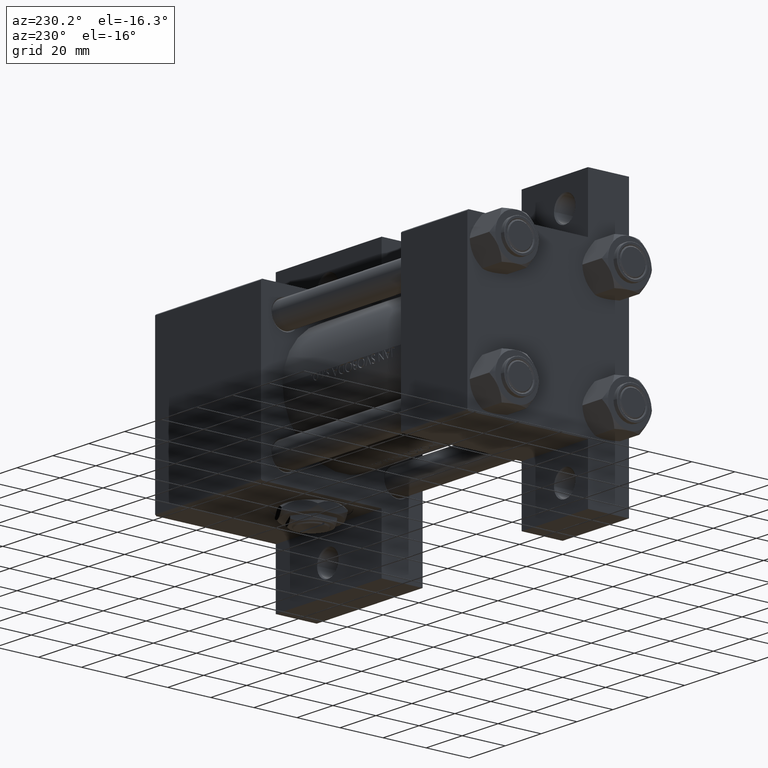
[diagram: clean part render]
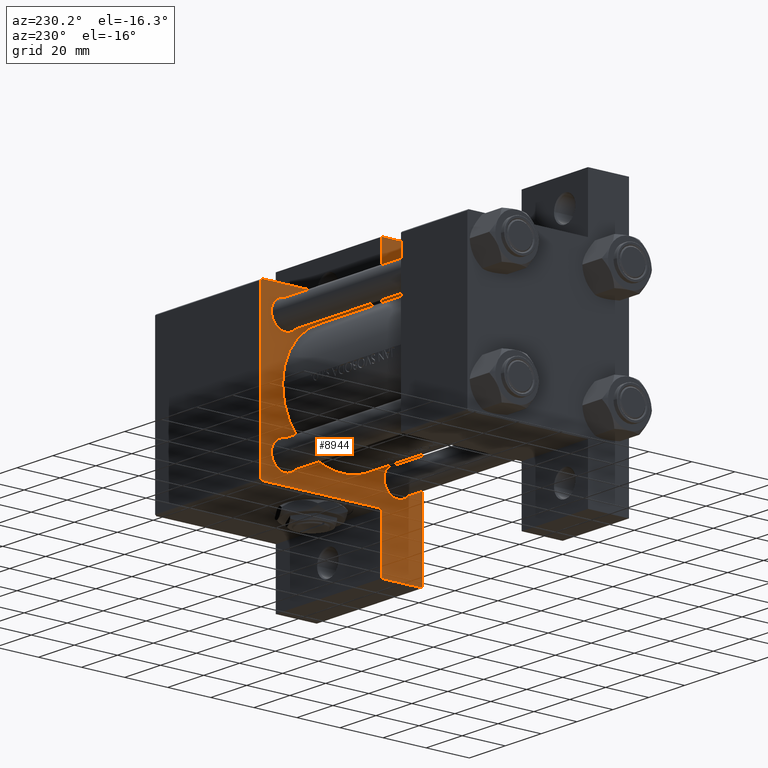
[diagram: same view with one face highlighted and labeled with its STEP entity id]
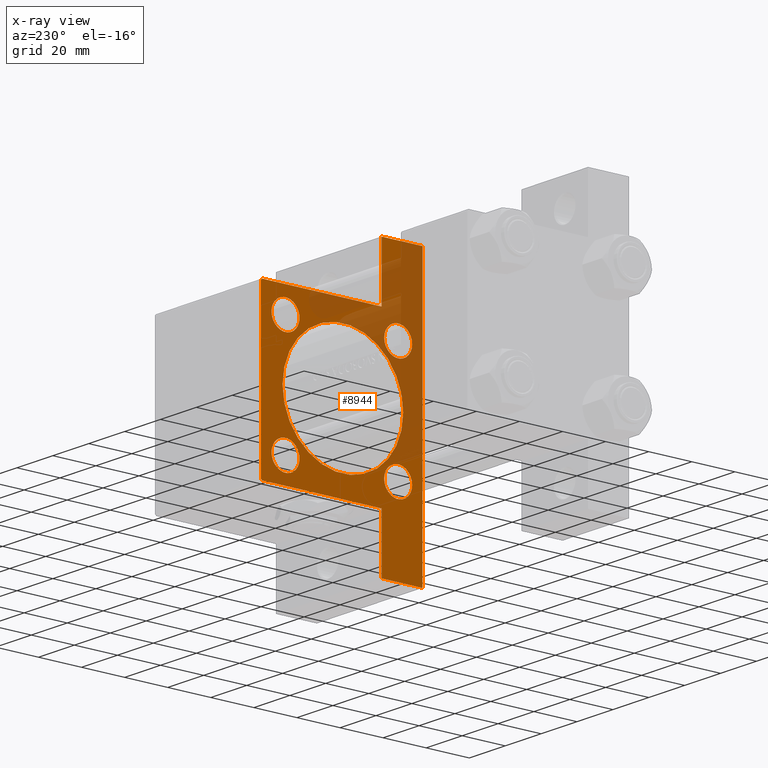
[diagram: x-ray of the same camera — body ghosted, the highlighted face saturated]
A machine part, auxiliary view. The second image highlights one B-rep face of the part: STEP entity #8944.
The next image is the same camera in x-ray: the body ghosted, the highlighted face saturated — about 37% of this face is hidden behind the body in this view.
In plain terms, the highlighted planar face has unit normal (-1, 0, 0).
Its self-contained STEP definition (entity closure, byte-faithful):
#45 = DIRECTION ( 'NONE',  ( -1.000000000000000000, -0.000000000000000000, 0.000000000000000000 ) ) ;
#174 = AXIS2_PLACEMENT_3D ( 'NONE', #28386, #29371, #6247 ) ;
#360 = LINE ( 'NONE', #41952, #45860 ) ;
#390 = DIRECTION ( 'NONE',  ( 0.000000000000000000, 0.000000000000000000, -1.000000000000000000 ) ) ;
#554 = CARTESIAN_POINT ( 'NONE',  ( 114.9999999999999858, -37.50000000000000000, 36.99999999999997868 ) ) ;
#589 = VERTEX_POINT ( 'NONE', #29819 ) ;
#794 = DIRECTION ( 'NONE',  ( 1.000000000000000000, 0.000000000000000000, 0.000000000000000000 ) ) ;
#1158 = EDGE_CURVE ( 'NONE', #44466, #37539, #19036, .T. ) ;
#1412 = VECTOR ( 'NONE', #8575, 1000.000000000000000 ) ;
#1504 = VERTEX_POINT ( 'NONE', #41440 ) ;
#1781 = VERTEX_POINT ( 'NONE', #27314 ) ;
#2285 = VERTEX_POINT ( 'NONE', #6824 ) ;
#2868 = EDGE_CURVE ( 'NONE', #21230, #24046, #42062, .T. ) ;
#2968 = EDGE_CURVE ( 'NONE', #28850, #26905, #27327, .T. ) ;
#3091 = ORIENTED_EDGE ( 'NONE', *, *, #1158, .T. ) ;
#3147 = DIRECTION ( 'NONE',  ( 1.000000000000000000, 0.000000000000000000, -0.000000000000000000 ) ) ;
#3533 = CARTESIAN_POINT ( 'NONE',  ( 114.9999999999999858, 26.14999999999999858, -19.64999999999999503 ) ) ;
#3559 = VECTOR ( 'NONE', #10689, 1000.000000000000000 ) ;
#4028 = VERTEX_POINT ( 'NONE', #45870 ) ;
#4963 = CIRCLE ( 'NONE', #32768, 28.00000000000000000 ) ;
#5330 = AXIS2_PLACEMENT_3D ( 'NONE', #34633, #45, #15193 ) ;
#5779 = ORIENTED_EDGE ( 'NONE', *, *, #7418, .F. ) ;
#5871 = CARTESIAN_POINT ( 'NONE',  ( 114.9999999999999858, 63.50000000000000000, -18.50000000000000000 ) ) ;
#6247 = DIRECTION ( 'NONE',  ( 0.000000000000000000, 0.000000000000000000, 1.000000000000000000 ) ) ;
#6709 = CARTESIAN_POINT ( 'NONE',  ( 114.9999999999999858, 37.00000000000000000, 37.49999999999999289 ) ) ;
#6824 = CARTESIAN_POINT ( 'NONE',  ( 114.9999999999999858, -26.14999999999999147, -19.65000000000000213 ) ) ;
#7352 = VERTEX_POINT ( 'NONE', #34209 ) ;
#7418 = EDGE_CURVE ( 'NONE', #44466, #37284, #360, .T. ) ;
#7743 = ORIENTED_EDGE ( 'NONE', *, *, #44661, .T. ) ;
#7926 = DIRECTION ( 'NONE',  ( 0.000000000000000000, 0.000000000000000000, -1.000000000000000000 ) ) ;
#8121 = DIRECTION ( 'NONE',  ( 0.000000000000000000, 0.000000000000000000, 1.000000000000000000 ) ) ;
#8210 = LINE ( 'NONE', #42087, #40367 ) ;
#8267 = ORIENTED_EDGE ( 'NONE', *, *, #23624, .T. ) ;
#8343 = LINE ( 'NONE', #19029, #15817 ) ;
#8575 = DIRECTION ( 'NONE',  ( 5.337610695313252371E-16, 1.000000000000000000, 0.000000000000000000 ) ) ;
#8944 = ADVANCED_FACE ( 'NONE', ( #31347, #16386, #12416, #23849, #20123, #27841 ), #26651, .T. ) ;
#9172 = ORIENTED_EDGE ( 'NONE', *, *, #13933, .T. ) ;
#9592 = EDGE_CURVE ( 'NONE', #23149, #28850, #23723, .T. ) ;
#10113 = CARTESIAN_POINT ( 'NONE',  ( 114.9999999999999858, 26.14999999999999858, -26.15000000000000213 ) ) ;
#10689 = DIRECTION ( 'NONE',  ( 0.000000000000000000, 0.000000000000000000, -1.000000000000000000 ) ) ;
#11335 = AXIS2_PLACEMENT_3D ( 'NONE', #10113, #3147, #25524 ) ;
#11565 = CARTESIAN_POINT ( 'NONE',  ( 114.9999999999999858, 26.14999999999999858, 26.15000000000000213 ) ) ;
#11609 = ORIENTED_EDGE ( 'NONE', *, *, #26212, .T. ) ;
#11927 = CARTESIAN_POINT ( 'NONE',  ( 114.9999999999999858, -26.14999999999999147, 19.65000000000000213 ) ) ;
#11980 = CARTESIAN_POINT ( 'NONE',  ( 114.9999999999999858, 0.000000000000000000, -0.5000000000000004441 ) ) ;
#12055 = CARTESIAN_POINT ( 'NONE',  ( 114.9999999999999716, -63.50000000000000000, -18.50000000000000000 ) ) ;
#12076 = CARTESIAN_POINT ( 'NONE',  ( 114.9999999999999858, -37.24999999999999289, 37.24999999999999289 ) ) ;
#12416 = FACE_BOUND ( 'NONE', #17080, .T. ) ;
#12801 = CARTESIAN_POINT ( 'NONE',  ( 114.9999999999999858, -26.14999999999999147, -26.15000000000000924 ) ) ;
#13797 = EDGE_CURVE ( 'NONE', #24046, #589, #40055, .T. ) ;
#13933 = EDGE_CURVE ( 'NONE', #1504, #37284, #46194, .T. ) ;
#14220 = CIRCLE ( 'NONE', #48456, 6.500000000000008882 ) ;
#14539 = EDGE_CURVE ( 'NONE', #23149, #37539, #8210, .T. ) ;
#15193 = DIRECTION ( 'NONE',  ( 0.000000000000000000, 0.000000000000000000, 1.000000000000000000 ) ) ;
#15518 = EDGE_LOOP ( 'NONE', ( #19790, #33145 ) ) ;
#15817 = VECTOR ( 'NONE', #390, 1000.000000000000000 ) ;
#16381 = CARTESIAN_POINT ( 'NONE',  ( 114.9999999999999858, 37.50000000000000000, -37.50000000000000000 ) ) ;
#16386 = FACE_BOUND ( 'NONE', #34801, .T. ) ;
#16490 = VECTOR ( 'NONE', #43799, 1000.000000000000000 ) ;
#16660 = DIRECTION ( 'NONE',  ( 0.000000000000000000, 0.000000000000000000, 1.000000000000000000 ) ) ;
#16662 = CARTESIAN_POINT ( 'NONE',  ( 114.9999999999999858, -26.14999999999999147, 26.15000000000000924 ) ) ;
#16666 = VERTEX_POINT ( 'NONE', #26988 ) ;
#16783 = CIRCLE ( 'NONE', #39882, 28.00000000000000000 ) ;
#17080 = EDGE_LOOP ( 'NONE', ( #8267, #35178 ) ) ;
#18230 = CARTESIAN_POINT ( 'NONE',  ( 114.9999999999999858, 37.50000000000000000, 36.99999999999999289 ) ) ;
#18452 = ORIENTED_EDGE ( 'NONE', *, *, #13797, .T. ) ;
#18790 = VECTOR ( 'NONE', #38939, 1000.000000000000114 ) ;
#18915 = AXIS2_PLACEMENT_3D ( 'NONE', #16662, #31870, #35845 ) ;
#19029 = CARTESIAN_POINT ( 'NONE',  ( 114.9999999999999716, -63.50000000000000000, -18.50000000000000000 ) ) ;
#19036 = LINE ( 'NONE', #12076, #23551 ) ;
#19248 = CIRCLE ( 'NONE', #11335, 6.500000000000008882 ) ;
#19582 = DIRECTION ( 'NONE',  ( 1.000000000000000000, 0.000000000000000000, 0.000000000000000000 ) ) ;
#19790 = ORIENTED_EDGE ( 'NONE', *, *, #43090, .T. ) ;
#19868 = AXIS2_PLACEMENT_3D ( 'NONE', #11565, #46692, #22754 ) ;
#19929 = ORIENTED_EDGE ( 'NONE', *, *, #9592, .T. ) ;
#20123 = FACE_BOUND ( 'NONE', #22346, .T. ) ;
#20146 = CARTESIAN_POINT ( 'NONE',  ( 114.9999999999999858, 26.14999999999999858, 26.15000000000000213 ) ) ;
#21230 = VERTEX_POINT ( 'NONE', #41649 ) ;
#21404 = ORIENTED_EDGE ( 'NONE', *, *, #34250, .T. ) ;
#21725 = ORIENTED_EDGE ( 'NONE', *, *, #2868, .T. ) ;
#22346 = EDGE_LOOP ( 'NONE', ( #11609, #44917 ) ) ;
#22754 = DIRECTION ( 'NONE',  ( 0.000000000000000000, 0.000000000000000000, 1.000000000000000000 ) ) ;
#22890 = CIRCLE ( 'NONE', #18915, 6.500000000000008882 ) ;
#23144 = VECTOR ( 'NONE', #25234, 1000.000000000000000 ) ;
#23149 = VERTEX_POINT ( 'NONE', #6709 ) ;
#23551 = VECTOR ( 'NONE', #34247, 1000.000000000000114 ) ;
#23624 = EDGE_CURVE ( 'NONE', #32609, #29249, #23948, .T. ) ;
#23723 = LINE ( 'NONE', #46427, #18790 ) ;
#23849 = FACE_BOUND ( 'NONE', #41661, .T. ) ;
#23948 = CIRCLE ( 'NONE', #25527, 6.500000000000008882 ) ;
#24046 = VERTEX_POINT ( 'NONE', #36528 ) ;
#24754 = CARTESIAN_POINT ( 'NONE',  ( 114.9999999999999858, 37.50000000000000000, 37.49999999999999289 ) ) ;
#25234 = DIRECTION ( 'NONE',  ( -0.000000000000000000, 1.000000000000000000, -0.000000000000000000 ) ) ;
#25524 = DIRECTION ( 'NONE',  ( 0.000000000000000000, 0.000000000000000000, 1.000000000000000000 ) ) ;
#25527 = AXIS2_PLACEMENT_3D ( 'NONE', #37755, #27015, #8121 ) ;
#26212 = EDGE_CURVE ( 'NONE', #45615, #4028, #4963, .T. ) ;
#26220 = DIRECTION ( 'NONE',  ( 0.000000000000000000, -9.251858538542972814E-17, -1.000000000000000000 ) ) ;
#26441 = EDGE_CURVE ( 'NONE', #29249, #32609, #19248, .T. ) ;
#26651 = PLANE ( 'NONE',  #5330 ) ;
#26905 = VERTEX_POINT ( 'NONE', #43115 ) ;
#26988 = CARTESIAN_POINT ( 'NONE',  ( 114.9999999999999858, 26.14999999999999858, 32.65000000000000568 ) ) ;
#27015 = DIRECTION ( 'NONE',  ( 1.000000000000000000, 0.000000000000000000, -0.000000000000000000 ) ) ;
#27198 = CIRCLE ( 'NONE', #174, 6.500000000000008882 ) ;
#27219 = DIRECTION ( 'NONE',  ( 1.000000000000000000, 0.000000000000000000, -0.000000000000000000 ) ) ;
#27271 = ORIENTED_EDGE ( 'NONE', *, *, #2968, .T. ) ;
#27314 = CARTESIAN_POINT ( 'NONE',  ( 114.9999999999999858, -26.14999999999999147, -32.65000000000002700 ) ) ;
#27327 = LINE ( 'NONE', #24754, #39346 ) ;
#27401 = DIRECTION ( 'NONE',  ( 0.000000000000000000, 0.000000000000000000, -1.000000000000000000 ) ) ;
#27841 = FACE_OUTER_BOUND ( 'NONE', #28712, .T. ) ;
#27986 = DIRECTION ( 'NONE',  ( 1.000000000000000000, 0.000000000000000000, -0.000000000000000000 ) ) ;
#28037 = CARTESIAN_POINT ( 'NONE',  ( 114.9999999999999858, 0.000000000000000000, 27.50000000000000000 ) ) ;
#28386 = CARTESIAN_POINT ( 'NONE',  ( 114.9999999999999858, -26.14999999999999147, -26.15000000000000924 ) ) ;
#28712 = EDGE_LOOP ( 'NONE', ( #41428, #19929, #27271, #38831, #21725, #18452, #29567, #9172, #5779, #3091 ) ) ;
#28850 = VERTEX_POINT ( 'NONE', #18230 ) ;
#28898 = CARTESIAN_POINT ( 'NONE',  ( 114.9999999999999858, -37.00000000000000000, 37.49999999999997868 ) ) ;
#29249 = VERTEX_POINT ( 'NONE', #39350 ) ;
#29371 = DIRECTION ( 'NONE',  ( 1.000000000000000000, 0.000000000000000000, -0.000000000000000000 ) ) ;
#29567 = ORIENTED_EDGE ( 'NONE', *, *, #34081, .F. ) ;
#29819 = CARTESIAN_POINT ( 'NONE',  ( 114.9999999999999716, -63.50000000000000000, -37.50000000000000000 ) ) ;
#30297 = CIRCLE ( 'NONE', #40665, 6.500000000000008882 ) ;
#31103 = DIRECTION ( 'NONE',  ( 0.000000000000000000, -1.000000000000000000, -1.850371707708594316E-16 ) ) ;
#31290 = VERTEX_POINT ( 'NONE', #45220 ) ;
#31347 = FACE_BOUND ( 'NONE', #15518, .T. ) ;
#31461 = CARTESIAN_POINT ( 'NONE',  ( 114.9999999999999858, -26.14999999999999147, 26.15000000000000924 ) ) ;
#31870 = DIRECTION ( 'NONE',  ( 1.000000000000000000, 0.000000000000000000, -0.000000000000000000 ) ) ;
#32112 = DIRECTION ( 'NONE',  ( 1.000000000000000000, 0.000000000000000000, -0.000000000000000000 ) ) ;
#32609 = VERTEX_POINT ( 'NONE', #3533 ) ;
#32765 = EDGE_CURVE ( 'NONE', #44807, #7352, #22890, .T. ) ;
#32768 = AXIS2_PLACEMENT_3D ( 'NONE', #46033, #19582, #7926 ) ;
#33145 = ORIENTED_EDGE ( 'NONE', *, *, #32765, .T. ) ;
#34081 = EDGE_CURVE ( 'NONE', #1504, #589, #8343, .T. ) ;
#34083 = CARTESIAN_POINT ( 'NONE',  ( 114.9999999999999858, 63.50000000000000000, -18.50000000000000000 ) ) ;
#34209 = CARTESIAN_POINT ( 'NONE',  ( 114.9999999999999858, -26.14999999999999147, 32.65000000000001990 ) ) ;
#34247 = DIRECTION ( 'NONE',  ( -0.000000000000000000, 0.7071067811865474617, 0.7071067811865474617 ) ) ;
#34250 = EDGE_CURVE ( 'NONE', #2285, #1781, #14220, .T. ) ;
#34255 = AXIS2_PLACEMENT_3D ( 'NONE', #20146, #32112, #16660 ) ;
#34633 = CARTESIAN_POINT ( 'NONE',  ( 114.9999999999999858, 0.000000000000000000, 0.000000000000000000 ) ) ;
#34801 = EDGE_LOOP ( 'NONE', ( #47124, #38407 ) ) ;
#35178 = ORIENTED_EDGE ( 'NONE', *, *, #26441, .T. ) ;
#35208 = DIRECTION ( 'NONE',  ( 0.000000000000000000, 0.000000000000000000, 1.000000000000000000 ) ) ;
#35845 = DIRECTION ( 'NONE',  ( 0.000000000000000000, 0.000000000000000000, 1.000000000000000000 ) ) ;
#36307 = EDGE_CURVE ( 'NONE', #16666, #31290, #45335, .T. ) ;
#36528 = CARTESIAN_POINT ( 'NONE',  ( 114.9999999999999858, 63.50000000000000000, -37.50000000000000000 ) ) ;
#37284 = VERTEX_POINT ( 'NONE', #45411 ) ;
#37539 = VERTEX_POINT ( 'NONE', #28898 ) ;
#37755 = CARTESIAN_POINT ( 'NONE',  ( 114.9999999999999858, 26.14999999999999858, -26.15000000000000213 ) ) ;
#38407 = ORIENTED_EDGE ( 'NONE', *, *, #38727, .T. ) ;
#38727 = EDGE_CURVE ( 'NONE', #31290, #16666, #45444, .T. ) ;
#38831 = ORIENTED_EDGE ( 'NONE', *, *, #39718, .T. ) ;
#38939 = DIRECTION ( 'NONE',  ( 0.000000000000000000, 0.7071067811865474617, -0.7071067811865474617 ) ) ;
#39346 = VECTOR ( 'NONE', #46047, 1000.000000000000000 ) ;
#39350 = CARTESIAN_POINT ( 'NONE',  ( 114.9999999999999858, 26.14999999999999858, -32.65000000000001279 ) ) ;
#39718 = EDGE_CURVE ( 'NONE', #26905, #21230, #40470, .T. ) ;
#39882 = AXIS2_PLACEMENT_3D ( 'NONE', #11980, #794, #27401 ) ;
#40055 = LINE ( 'NONE', #16381, #16490 ) ;
#40367 = VECTOR ( 'NONE', #31103, 1000.000000000000000 ) ;
#40470 = LINE ( 'NONE', #5871, #23144 ) ;
#40665 = AXIS2_PLACEMENT_3D ( 'NONE', #31461, #27219, #35208 ) ;
#41428 = ORIENTED_EDGE ( 'NONE', *, *, #14539, .F. ) ;
#41440 = CARTESIAN_POINT ( 'NONE',  ( 114.9999999999999716, -63.50000000000000000, -18.50000000000000000 ) ) ;
#41649 = CARTESIAN_POINT ( 'NONE',  ( 114.9999999999999858, 63.50000000000000000, -18.50000000000000000 ) ) ;
#41661 = EDGE_LOOP ( 'NONE', ( #21404, #7743 ) ) ;
#41952 = CARTESIAN_POINT ( 'NONE',  ( 114.9999999999999858, -37.50000000000000000, 37.49999999999997868 ) ) ;
#42062 = LINE ( 'NONE', #34083, #3559 ) ;
#42087 = CARTESIAN_POINT ( 'NONE',  ( 114.9999999999999858, 37.50000000000000000, 37.49999999999999289 ) ) ;
#43090 = EDGE_CURVE ( 'NONE', #7352, #44807, #30297, .T. ) ;
#43115 = CARTESIAN_POINT ( 'NONE',  ( 114.9999999999999858, 37.50000000000000000, -18.50000000000000355 ) ) ;
#43367 = EDGE_CURVE ( 'NONE', #4028, #45615, #16783, .T. ) ;
#43799 = DIRECTION ( 'NONE',  ( 0.000000000000000000, -1.000000000000000000, 0.000000000000000000 ) ) ;
#44466 = VERTEX_POINT ( 'NONE', #554 ) ;
#44661 = EDGE_CURVE ( 'NONE', #1781, #2285, #27198, .T. ) ;
#44807 = VERTEX_POINT ( 'NONE', #11927 ) ;
#44917 = ORIENTED_EDGE ( 'NONE', *, *, #43367, .T. ) ;
#45220 = CARTESIAN_POINT ( 'NONE',  ( 114.9999999999999858, 26.14999999999999858, 19.65000000000000568 ) ) ;
#45335 = CIRCLE ( 'NONE', #19868, 6.499999999999995559 ) ;
#45411 = CARTESIAN_POINT ( 'NONE',  ( 114.9999999999999858, -37.50000000000000000, -18.50000000000000000 ) ) ;
#45444 = CIRCLE ( 'NONE', #34255, 6.499999999999995559 ) ;
#45615 = VERTEX_POINT ( 'NONE', #28037 ) ;
#45860 = VECTOR ( 'NONE', #26220, 1000.000000000000000 ) ;
#45870 = CARTESIAN_POINT ( 'NONE',  ( 114.9999999999999858, 3.429011037612589276E-15, -28.50000000000000000 ) ) ;
#46033 = CARTESIAN_POINT ( 'NONE',  ( 114.9999999999999858, 0.000000000000000000, -0.5000000000000004441 ) ) ;
#46047 = DIRECTION ( 'NONE',  ( 0.000000000000000000, 0.000000000000000000, -1.000000000000000000 ) ) ;
#46194 = LINE ( 'NONE', #12055, #1412 ) ;
#46427 = CARTESIAN_POINT ( 'NONE',  ( 114.9999999999999858, 37.25000000000000000, 37.25000000000000000 ) ) ;
#46692 = DIRECTION ( 'NONE',  ( 1.000000000000000000, 0.000000000000000000, -0.000000000000000000 ) ) ;
#47124 = ORIENTED_EDGE ( 'NONE', *, *, #36307, .T. ) ;
#47437 = DIRECTION ( 'NONE',  ( 0.000000000000000000, 0.000000000000000000, 1.000000000000000000 ) ) ;
#48456 = AXIS2_PLACEMENT_3D ( 'NONE', #12801, #27986, #47437 ) ;